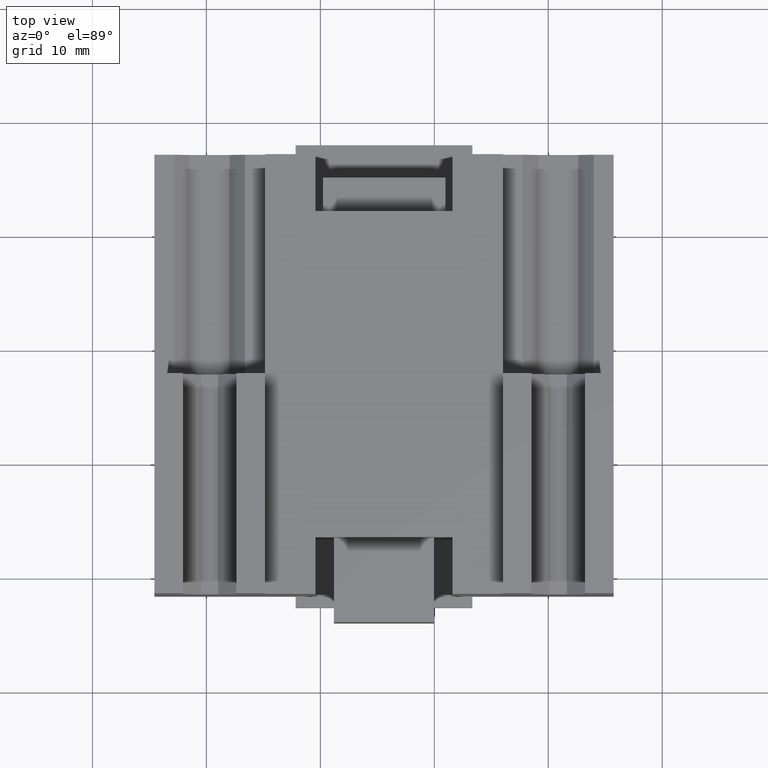
[diagram: clean part render]
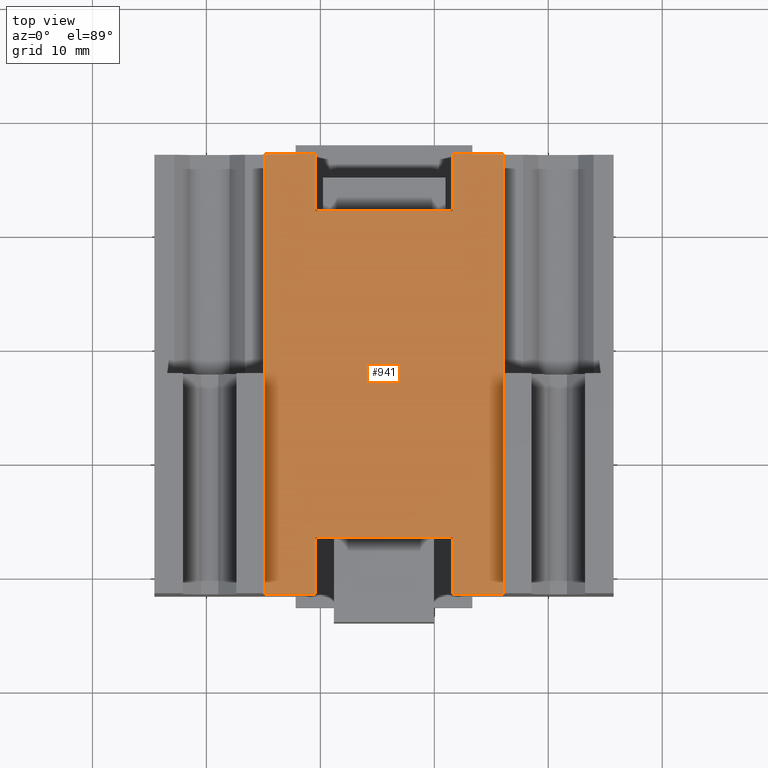
[diagram: same view with one face highlighted and labeled with its STEP entity id]
A machine part, top view. The second image highlights one B-rep face of the part: STEP entity #941.
In plain terms, the highlighted planar face has unit normal (0, 0, 1).
Its self-contained STEP definition (entity closure, byte-faithful):
#290=CARTESIAN_POINT('',(-14.864884803122766,26.878371216523007,14.000000000000002));
#291=VERTEX_POINT('',#290);
#298=CARTESIAN_POINT('',(-10.414884803122773,26.878371216523007,14.000000000000002));
#299=VERTEX_POINT('',#298);
#300=CARTESIAN_POINT('',(-14.864884803122766,26.878371216523007,14.000000000000002));
#301=DIRECTION('',(1.0,0.0,0.0));
#302=VECTOR('',#301,4.449999999999994);
#303=LINE('',#300,#302);
#304=EDGE_CURVE('',#291,#299,#303,.T.);
#322=CARTESIAN_POINT('',(1.585115196877229,26.878371216523011,14.000000000000002));
#323=VERTEX_POINT('',#322);
#330=CARTESIAN_POINT('',(6.035115196877223,26.878371216523007,14.000000000000002));
#331=VERTEX_POINT('',#330);
#332=CARTESIAN_POINT('',(1.585115196877229,26.878371216523011,14.000000000000002));
#333=DIRECTION('',(1.0,0.0,0.0));
#334=VECTOR('',#333,4.449999999999994);
#335=LINE('',#332,#334);
#336=EDGE_CURVE('',#323,#331,#335,.T.);
#656=CARTESIAN_POINT('',(-14.864884803122763,7.578371216523005,14.000000000000002));
#657=VERTEX_POINT('',#656);
#742=CARTESIAN_POINT('',(-14.864884803122758,-11.721628783477001,14.000000000000002));
#743=VERTEX_POINT('',#742);
#750=CARTESIAN_POINT('',(-14.864884803122763,7.578371216523005,14.000000000000002));
#751=DIRECTION('',(0.0,-1.0,0.0));
#752=VECTOR('',#751,19.300000000000004);
#753=LINE('',#750,#752);
#754=EDGE_CURVE('',#657,#743,#753,.T.);
#849=CARTESIAN_POINT('',(-4.414884803122769,7.578371216523003,14.000000000000002));
#850=DIRECTION('',(0.0,0.0,1.0));
#851=DIRECTION('',(1.0,0.0,0.0));
#852=AXIS2_PLACEMENT_3D('',#849,#850,#851);
#853=PLANE('',#852);
#854=ORIENTED_EDGE('',*,*,#754,.T.);
#855=CARTESIAN_POINT('',(-10.414884803122773,-11.721628783477001,14.000000000000002));
#856=VERTEX_POINT('',#855);
#857=CARTESIAN_POINT('',(-10.414884803122773,-11.721628783477001,14.000000000000002));
#858=DIRECTION('',(-1.0,0.0,0.0));
#859=VECTOR('',#858,4.449999999999985);
#860=LINE('',#857,#859);
#861=EDGE_CURVE('',#856,#743,#860,.T.);
#862=ORIENTED_EDGE('',*,*,#861,.F.);
#863=CARTESIAN_POINT('',(-10.414884803122773,-6.721628783477001,14.000000000000002));
#864=VERTEX_POINT('',#863);
#865=CARTESIAN_POINT('',(-10.414884803122773,-11.721628783477001,14.000000000000002));
#866=DIRECTION('',(0.0,1.0,0.0));
#867=VECTOR('',#866,5.0);
#868=LINE('',#865,#867);
#869=EDGE_CURVE('',#856,#864,#868,.T.);
#870=ORIENTED_EDGE('',*,*,#869,.T.);
#871=CARTESIAN_POINT('',(1.585115196877228,-6.721628783477000,14.000000000000002));
#872=VERTEX_POINT('',#871);
#873=CARTESIAN_POINT('',(-10.414884803122773,-6.721628783477001,14.000000000000002));
#874=DIRECTION('',(1.0,0.0,0.0));
#875=VECTOR('',#874,12.0);
#876=LINE('',#873,#875);
#877=EDGE_CURVE('',#864,#872,#876,.T.);
#878=ORIENTED_EDGE('',*,*,#877,.T.);
#879=CARTESIAN_POINT('',(1.585115196877230,-11.721628783476998,14.000000000000002));
#880=VERTEX_POINT('',#879);
#881=CARTESIAN_POINT('',(1.585115196877228,-6.721628783477000,14.000000000000002));
#882=DIRECTION('',(0.0,-1.0,0.0));
#883=VECTOR('',#882,4.999999999999998);
#884=LINE('',#881,#883);
#885=EDGE_CURVE('',#872,#880,#884,.T.);
#886=ORIENTED_EDGE('',*,*,#885,.T.);
#887=CARTESIAN_POINT('',(6.035115196877223,-11.721628783476998,14.000000000000002));
#888=VERTEX_POINT('',#887);
#889=CARTESIAN_POINT('',(6.035115196877223,-11.721628783476998,14.000000000000002));
#890=DIRECTION('',(-1.0,0.0,0.0));
#891=VECTOR('',#890,4.449999999999994);
#892=LINE('',#889,#891);
#893=EDGE_CURVE('',#888,#880,#892,.T.);
#894=ORIENTED_EDGE('',*,*,#893,.F.);
#895=CARTESIAN_POINT('',(6.035115196877223,7.578371216523006,14.000000000000002));
#896=VERTEX_POINT('',#895);
#897=CARTESIAN_POINT('',(6.035115196877223,-11.721628783476998,14.000000000000002));
#898=DIRECTION('',(0.0,1.0,0.0));
#899=VECTOR('',#898,19.300000000000004);
#900=LINE('',#897,#899);
#901=EDGE_CURVE('',#888,#896,#900,.T.);
#902=ORIENTED_EDGE('',*,*,#901,.T.);
#903=CARTESIAN_POINT('',(6.035115196877223,7.578371216523006,14.000000000000002));
#904=DIRECTION('',(0.0,1.0,0.0));
#905=VECTOR('',#904,19.300000000000001);
#906=LINE('',#903,#905);
#907=EDGE_CURVE('',#896,#331,#906,.T.);
#908=ORIENTED_EDGE('',*,*,#907,.T.);
#909=ORIENTED_EDGE('',*,*,#336,.F.);
#910=CARTESIAN_POINT('',(1.585115196877229,21.878371216523014,14.000000000000002));
#911=VERTEX_POINT('',#910);
#912=CARTESIAN_POINT('',(1.585115196877229,26.878371216523011,14.000000000000002));
#913=DIRECTION('',(0.0,-1.0,0.0));
#914=VECTOR('',#913,4.999999999999996);
#915=LINE('',#912,#914);
#916=EDGE_CURVE('',#323,#911,#915,.T.);
#917=ORIENTED_EDGE('',*,*,#916,.T.);
#918=CARTESIAN_POINT('',(-10.414884803122773,21.878371216523011,14.000000000000002));
#919=VERTEX_POINT('',#918);
#920=CARTESIAN_POINT('',(1.585115196877229,21.878371216523014,14.000000000000002));
#921=DIRECTION('',(-1.0,0.0,0.0));
#922=VECTOR('',#921,12.000000000000002);
#923=LINE('',#920,#922);
#924=EDGE_CURVE('',#911,#919,#923,.T.);
#925=ORIENTED_EDGE('',*,*,#924,.T.);
#926=CARTESIAN_POINT('',(-10.414884803122773,21.878371216523011,14.000000000000002));
#927=DIRECTION('',(0.0,1.0,0.0));
#928=VECTOR('',#927,4.999999999999996);
#929=LINE('',#926,#928);
#930=EDGE_CURVE('',#919,#299,#929,.T.);
#931=ORIENTED_EDGE('',*,*,#930,.T.);
#932=ORIENTED_EDGE('',*,*,#304,.F.);
#933=CARTESIAN_POINT('',(-14.864884803122766,26.878371216523007,14.000000000000002));
#934=DIRECTION('',(0.0,-1.0,0.0));
#935=VECTOR('',#934,19.300000000000004);
#936=LINE('',#933,#935);
#937=EDGE_CURVE('',#291,#657,#936,.T.);
#938=ORIENTED_EDGE('',*,*,#937,.T.);
#939=EDGE_LOOP('',(#854,#862,#870,#878,#886,#894,#902,#908,#909,#917,#925,#931,#932,#938));
#940=FACE_OUTER_BOUND('',#939,.T.);
#941=ADVANCED_FACE('',(#940),#853,.T.);